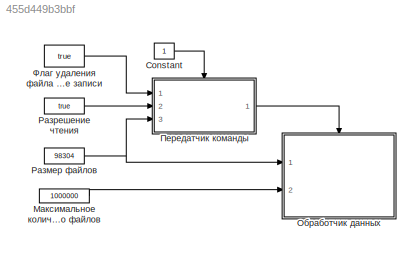
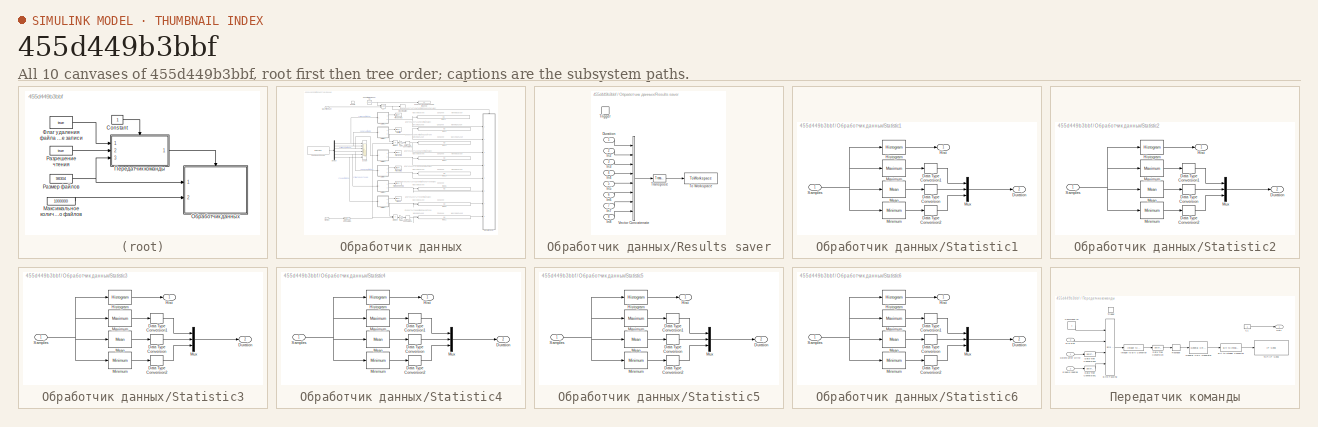
[diagram: thumbnail index - all 10 canvases of the model, root first then tree order]
MODEL slx_455d449b3bbf
KIND model
CONFIG AbsTol = auto
CONFIG EnableMultiTasking = off
CONFIG FixedStep = 0.001
CONFIG MaxStep = auto
CONFIG MinStep = auto
CONFIG RelTol = 1e-3
CONFIG SampleTimeConstraint = Unconstrained
CONFIG SolverName = FixedStepAuto
CONFIG StartTime = 0.0
CONFIG StopTime = inf
BLOCK [Constant] Constant
BLOCK [Constant] Максимальное количество файлов
  OutDataTypeStr = uint32
  Value = 1000000
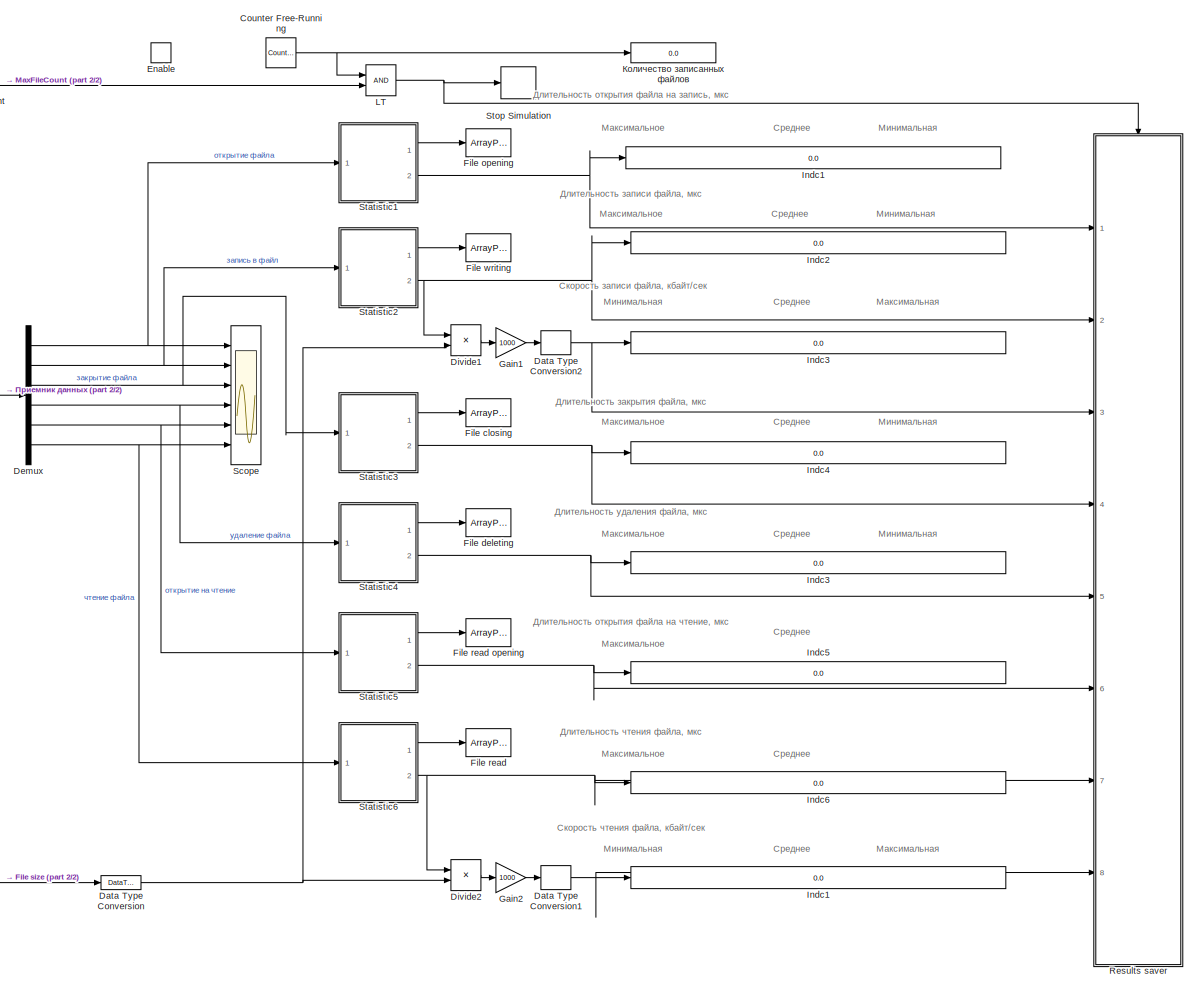
[diagram: Обработчик данных - part 1/2, most of the canvas]
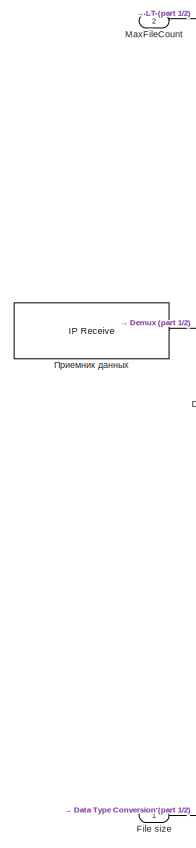
[diagram: Обработчик данных - part 2/2, left side, full height]
BLOCK [SubSystem] Обработчик данных
  Ports = [2, 0, 1]
  RequestExecContextInheritance = off
  TreatAsAtomicUnit = on
BLOCK [Display] Обработчик данных/ Indc1
  Decimation = 1
  Format = long
  Ports = [1]
BLOCK [Display] Обработчик данных/ Indc2
  Decimation = 1
  Format = long
  Ports = [1]
BLOCK [Display] Обработчик данных/ Indc3
  Decimation = 1
  Format = long
  Ports = [1]
BLOCK [Display] Обработчик данных/ Indc4
  Decimation = 1
  Format = long
  Ports = [1]
BLOCK [Display] Обработчик данных/ Indc5
  Decimation = 1
  Format = long
  Ports = [1]
BLOCK [Display] Обработчик данных/ Indc6
  Decimation = 1
  Format = long
  Ports = [1]
BLOCK [Reference] Обработчик данных/Counter Free-Running  REF=simulink/Sources/Counter
Free-Running
  Ports = [0, 1]
  SourceBlock = simulink/Sources/Counter\nFree-Running
  SourceProductBaseCode = SL
  SourceType = Counter Free-Running
BLOCK [DataTypeConversion] Обработчик данных/Data Type Conversion
  OutDataTypeStr = single
  RndMeth = Floor
  SaturateOnIntegerOverflow = off
BLOCK [DataTypeConversion] Обработчик данных/Data Type Conversion1
  OutDataTypeStr = int32
  RndMeth = Floor
  SaturateOnIntegerOverflow = off
BLOCK [DataTypeConversion] Обработчик данных/Data Type Conversion2
  OutDataTypeStr = int32
  RndMeth = Floor
  SaturateOnIntegerOverflow = off
BLOCK [Demux] Обработчик данных/Demux
  Outputs = 6
  Ports = [1, 6]
BLOCK [Product] Обработчик данных/Divide1
  Inputs = /*
  OutDataTypeStr = single
  Ports = [2, 1]
BLOCK [Product] Обработчик данных/Divide2
  Inputs = /*
  OutDataTypeStr = single
  Ports = [2, 1]
BLOCK [EnablePort] Обработчик данных/Enable
  Ports = []
BLOCK [ArrayPlot] Обработчик данных/File closing
  AxesScaling = Manual
  GraphicalSettings = {"Style":{"BackgroundColor":[0.1568627450980392,0.1568627450980392,0.1568627450980392],"AxesColor":[0,0,0],"LabelsColor":[0.6862745098039216,0.6862745098039216,0.6862745098039216],"LineStyle":["-"],"LineColor":[[1,1,0.06666666666666667]],"LineWidth":[1.5],"Marker":["none"],"FontSize":"small"},"Cursors":{"Enabled":false,"XLocation":[29,74.25],"SnapToData":false,"LockSpacing":false,"ShowText":false}...<+328ch>  <repeated x6 — deduplicated; at blocks: File closing, File deleting, File opening, File read, File read opening, File writing>
  PlotType = Stairs
  Ports = [1]
  SampleIncrement = 0.5
  ScopeFrameLocation = window
  ShowLegend = on
  Visible = on
  WasSavedAsWebScope = on
  WindowPosition = [1308.000000,91.000000,562.000000,274.000000,]
  YLimits = [-24.5,200]
  YScale = Log
BLOCK [ArrayPlot] Обработчик данных/File deleting
  AxesScaling = Manual
  PlotType = Stairs
  Ports = [1]
  SampleIncrement = 0.5
  ScopeFrameLocation = window
  ShowLegend = on
  Visible = on
  WasSavedAsWebScope = on
  WindowPosition = [1308.000000,91.000000,562.000000,274.000000,]
  YLimits = [-24.5,200]
  YScale = Log
BLOCK [ArrayPlot] Обработчик данных/File opening
  AxesScaling = Manual
  PlotType = Stairs
  Ports = [1]
  SampleIncrement = 0.5
  ScopeFrameLocation = window
  ShowLegend = on
  Visible = on
  WasSavedAsWebScope = on
  WindowPosition = [1311.000000,673.000000,562.000000,326.000000,]
  YLimits = [-24.5,200]
  YScale = Log
BLOCK [ArrayPlot] Обработчик данных/File read
  AxesScaling = Manual
  PlotType = Stairs
  Ports = [1]
  SampleIncrement = 0.5
  ScopeFrameLocation = window
  ShowLegend = on
  Visible = on
  WasSavedAsWebScope = on
  WindowPosition = [1308.000000,91.000000,562.000000,274.000000,]
  YLimits = [-24.5,200]
  YScale = Log
BLOCK [ArrayPlot] Обработчик данных/File read opening
  AxesScaling = Manual
  PlotType = Stairs
  Ports = [1]
  SampleIncrement = 0.5
  ScopeFrameLocation = window
  ShowLegend = on
  Visible = on
  WasSavedAsWebScope = on
  WindowPosition = [1308.000000,91.000000,562.000000,274.000000,]
  YLimits = [-24.5,200]
  YScale = Log
BLOCK [Inport] Обработчик данных/File size
BLOCK [ArrayPlot] Обработчик данных/File writing
  AxesScaling = Manual
  PlotType = Stairs
  Ports = [1]
  SampleIncrement = 300
  ScopeFrameLocation = window
  ShowLegend = on
  Visible = on
  WasSavedAsWebScope = on
  WindowPosition = [1310.000000,375.000000,562.000000,288.000000,]
  YLimits = [-24.5,200]
  YScale = Log
BLOCK [Gain] Обработчик данных/Gain1
  Gain = 1000
BLOCK [Gain] Обработчик данных/Gain2
  Gain = 1000
BLOCK [Display] Обработчик данных/Indc1
  Decimation = 1
  Format = long
  Ports = [1]
BLOCK [Display] Обработчик данных/Indc3
  Decimation = 1
  Format = long
  Ports = [1]
BLOCK [RelationalOperator] Обработчик данных/LT
  InputSameDT = off
  OutDataTypeStr = boolean
  Ports = [2, 1]
  RndMeth = Simplest
BLOCK [Inport] Обработчик данных/MaxFileCount
  Port = 2
BLOCK [SubSystem] Обработчик данных/Results saver
  Ports = [8, 0, 0, 1]
  RequestExecContextInheritance = off
  TreatAsAtomicUnit = on
BLOCK [Inport] Обработчик данных/Results saver/Duration
BLOCK [Inport] Обработчик данных/Results saver/In2
  Port = 2
BLOCK [Inport] Обработчик данных/Results saver/In3
  Port = 3
BLOCK [Inport] Обработчик данных/Results saver/In4
  Port = 4
BLOCK [Inport] Обработчик данных/Results saver/In5
  Port = 5
BLOCK [Inport] Обработчик данных/Results saver/In6
  Port = 6
BLOCK [Inport] Обработчик данных/Results saver/In7
  Port = 7
BLOCK [Inport] Обработчик данных/Results saver/In8
  Port = 8
BLOCK [ToWorkspace] Обработчик данных/Results saver/To Workspace
  FixptAsFi = on
  MaxDataPoints = inf
  Ports = [1]
  SampleTime = -1
  VariableName = Test_results
BLOCK [Reference] Обработчик данных/Results saver/Transpose  REF=matrix_library/Transpose
  Ports = [1, 1]
  SourceBlock = matrix_library/Transpose
  SourceProductBaseCode = SL
  SourceType = Transpose
BLOCK [TriggerPort] Обработчик данных/Results saver/Trigger
  InitialTriggerSignalState = zero
  Ports = []
  StatesWhenEnabling = held
  VariantControl = (inherit)
BLOCK [Concatenate] Обработчик данных/Results saver/Vector Concatenate
  ConcatenateDimension = 2
  Mode = Multidimensional array
  NumInputs = 8
  Ports = [8, 1]
BLOCK [Scope] Обработчик данных/Scope
  Floating = off
  NumInputPorts = 6
  Ports = [6]
  ScopeSpecificationString = Simulink.scopes.TimeScopeBlockCfg('CurrentConfiguration', extmgr.ConfigurationSet(extmgr.Configuration('Core','General UI',true),extmgr.Configuration('Core','Source UI',true),extmgr.Configuration('Sources','WiredSimulink',true,'DataLoggingVariableName','ScopeData1'),extmgr.Configuration('Visuals','Time Domain',true,'SerializedDisplays',{struct('MinYLimReal','79.00000','MaxYLimReal','119.00000','YL...<+5204ch>
BLOCK [SubSystem] Обработчик данных/Statistic1
  Ports = [1, 2]
  RequestExecContextInheritance = off
BLOCK [DataTypeConversion] Обработчик данных/Statistic1/Data Type Conversion
  OutDataTypeStr = int32
  RndMeth = Floor
  SaturateOnIntegerOverflow = off
BLOCK [DataTypeConversion] Обработчик данных/Statistic1/Data Type Conversion1
  OutDataTypeStr = int32
  RndMeth = Floor
  SaturateOnIntegerOverflow = off
BLOCK [DataTypeConversion] Обработчик данных/Statistic1/Data Type Conversion2
  OutDataTypeStr = int32
  RndMeth = Floor
  SaturateOnIntegerOverflow = off
BLOCK [Outport] Обработчик данных/Statistic1/Duration
  Port = 2
BLOCK [Outport] Обработчик данных/Statistic1/Hist
BLOCK [Reference] Обработчик данных/Statistic1/Histogram  REF=dspstat3/Histogram
  Ports = [1, 1]
  SourceBlock = dspstat3/Histogram
  SourceProductBaseCode = DS
  SourceType = Histogram
  UserDataPersistent = on
BLOCK [Reference] Обработчик данных/Statistic1/Maximum  REF=dspstat3/Maximum
  Ports = [1, 1]
  SourceBlock = dspstat3/Maximum
  SourceProductBaseCode = DS
  SourceType = Maximum
  UserDataPersistent = on
BLOCK [Reference] Обработчик данных/Statistic1/Mean  REF=dspstat3/Mean
  Ports = [1, 1]
  SourceBlock = dspstat3/Mean
  SourceProductBaseCode = DS
  SourceType = Mean
  UserDataPersistent = on
BLOCK [Reference] Обработчик данных/Statistic1/Minimum  REF=dspstat3/Minimum
  Ports = [1, 1]
  SourceBlock = dspstat3/Minimum
  SourceProductBaseCode = DS
  SourceType = Minimum
  UserDataPersistent = on
BLOCK [Mux] Обработчик данных/Statistic1/Mux
  DisplayOption = bar
  Inputs = 3
  Ports = [3, 1]
BLOCK [Inport] Обработчик данных/Statistic1/Samples
BLOCK [SubSystem] Обработчик данных/Statistic2
  Ports = [1, 2]
  RequestExecContextInheritance = off
BLOCK [DataTypeConversion] Обработчик данных/Statistic2/Data Type Conversion
  OutDataTypeStr = int32
  RndMeth = Floor
  SaturateOnIntegerOverflow = off
BLOCK [DataTypeConversion] Обработчик данных/Statistic2/Data Type Conversion1
  OutDataTypeStr = int32
  RndMeth = Floor
  SaturateOnIntegerOverflow = off
BLOCK [DataTypeConversion] Обработчик данных/Statistic2/Data Type Conversion2
  OutDataTypeStr = int32
  RndMeth = Floor
  SaturateOnIntegerOverflow = off
BLOCK [Outport] Обработчик данных/Statistic2/Duration
  Port = 2
BLOCK [Outport] Обработчик данных/Statistic2/Hist
BLOCK [Reference] Обработчик данных/Statistic2/Histogram  REF=dspstat3/Histogram
  Ports = [1, 1]
  SourceBlock = dspstat3/Histogram
  SourceProductBaseCode = DS
  SourceType = Histogram
  UserDataPersistent = on
BLOCK [Reference] Обработчик данных/Statistic2/Maximum  REF=dspstat3/Maximum
  Ports = [1, 1]
  SourceBlock = dspstat3/Maximum
  SourceProductBaseCode = DS
  SourceType = Maximum
  UserDataPersistent = on
BLOCK [Reference] Обработчик данных/Statistic2/Mean  REF=dspstat3/Mean
  Ports = [1, 1]
  SourceBlock = dspstat3/Mean
  SourceProductBaseCode = DS
  SourceType = Mean
  UserDataPersistent = on
BLOCK [Reference] Обработчик данных/Statistic2/Minimum  REF=dspstat3/Minimum
  Ports = [1, 1]
  SourceBlock = dspstat3/Minimum
  SourceProductBaseCode = DS
  SourceType = Minimum
  UserDataPersistent = on
BLOCK [Mux] Обработчик данных/Statistic2/Mux
  DisplayOption = bar
  Inputs = 3
  Ports = [3, 1]
BLOCK [Inport] Обработчик данных/Statistic2/Samples
BLOCK [SubSystem] Обработчик данных/Statistic3
  Ports = [1, 2]
  RequestExecContextInheritance = off
BLOCK [DataTypeConversion] Обработчик данных/Statistic3/Data Type Conversion
  OutDataTypeStr = int32
  RndMeth = Floor
  SaturateOnIntegerOverflow = off
BLOCK [DataTypeConversion] Обработчик данных/Statistic3/Data Type Conversion1
  OutDataTypeStr = int32
  RndMeth = Floor
  SaturateOnIntegerOverflow = off
BLOCK [DataTypeConversion] Обработчик данных/Statistic3/Data Type Conversion2
  OutDataTypeStr = int32
  RndMeth = Floor
  SaturateOnIntegerOverflow = off
BLOCK [Outport] Обработчик данных/Statistic3/Duration
  Port = 2
BLOCK [Outport] Обработчик данных/Statistic3/Hist
BLOCK [Reference] Обработчик данных/Statistic3/Histogram  REF=dspstat3/Histogram
  Ports = [1, 1]
  SourceBlock = dspstat3/Histogram
  SourceProductBaseCode = DS
  SourceType = Histogram
  UserDataPersistent = on
BLOCK [Reference] Обработчик данных/Statistic3/Maximum  REF=dspstat3/Maximum
  Ports = [1, 1]
  SourceBlock = dspstat3/Maximum
  SourceProductBaseCode = DS
  SourceType = Maximum
  UserDataPersistent = on
BLOCK [Reference] Обработчик данных/Statistic3/Mean  REF=dspstat3/Mean
  Ports = [1, 1]
  SourceBlock = dspstat3/Mean
  SourceProductBaseCode = DS
  SourceType = Mean
  UserDataPersistent = on
BLOCK [Reference] Обработчик данных/Statistic3/Minimum  REF=dspstat3/Minimum
  Ports = [1, 1]
  SourceBlock = dspstat3/Minimum
  SourceProductBaseCode = DS
  SourceType = Minimum
  UserDataPersistent = on
BLOCK [Mux] Обработчик данных/Statistic3/Mux
  DisplayOption = bar
  Inputs = 3
  Ports = [3, 1]
BLOCK [Inport] Обработчик данных/Statistic3/Samples
BLOCK [SubSystem] Обработчик данных/Statistic4
  Ports = [1, 2]
  RequestExecContextInheritance = off
BLOCK [DataTypeConversion] Обработчик данных/Statistic4/Data Type Conversion
  OutDataTypeStr = int32
  RndMeth = Floor
  SaturateOnIntegerOverflow = off
BLOCK [DataTypeConversion] Обработчик данных/Statistic4/Data Type Conversion1
  OutDataTypeStr = int32
  RndMeth = Floor
  SaturateOnIntegerOverflow = off
BLOCK [DataTypeConversion] Обработчик данных/Statistic4/Data Type Conversion2
  OutDataTypeStr = int32
  RndMeth = Floor
  SaturateOnIntegerOverflow = off
BLOCK [Outport] Обработчик данных/Statistic4/Duration
  Port = 2
BLOCK [Outport] Обработчик данных/Statistic4/Hist
BLOCK [Reference] Обработчик данных/Statistic4/Histogram  REF=dspstat3/Histogram
  Ports = [1, 1]
  SourceBlock = dspstat3/Histogram
  SourceProductBaseCode = DS
  SourceType = Histogram
  UserDataPersistent = on
BLOCK [Reference] Обработчик данных/Statistic4/Maximum  REF=dspstat3/Maximum
  Ports = [1, 1]
  SourceBlock = dspstat3/Maximum
  SourceProductBaseCode = DS
  SourceType = Maximum
  UserDataPersistent = on
BLOCK [Reference] Обработчик данных/Statistic4/Mean  REF=dspstat3/Mean
  Ports = [1, 1]
  SourceBlock = dspstat3/Mean
  SourceProductBaseCode = DS
  SourceType = Mean
  UserDataPersistent = on
BLOCK [Reference] Обработчик данных/Statistic4/Minimum  REF=dspstat3/Minimum
  Ports = [1, 1]
  SourceBlock = dspstat3/Minimum
  SourceProductBaseCode = DS
  SourceType = Minimum
  UserDataPersistent = on
BLOCK [Mux] Обработчик данных/Statistic4/Mux
  DisplayOption = bar
  Inputs = 3
  Ports = [3, 1]
BLOCK [Inport] Обработчик данных/Statistic4/Samples
BLOCK [SubSystem] Обработчик данных/Statistic5
  Ports = [1, 2]
  RequestExecContextInheritance = off
BLOCK [DataTypeConversion] Обработчик данных/Statistic5/Data Type Conversion
  OutDataTypeStr = int32
  RndMeth = Floor
  SaturateOnIntegerOverflow = off
BLOCK [DataTypeConversion] Обработчик данных/Statistic5/Data Type Conversion1
  OutDataTypeStr = int32
  RndMeth = Floor
  SaturateOnIntegerOverflow = off
BLOCK [DataTypeConversion] Обработчик данных/Statistic5/Data Type Conversion2
  OutDataTypeStr = int32
  RndMeth = Floor
  SaturateOnIntegerOverflow = off
BLOCK [Outport] Обработчик данных/Statistic5/Duration
  Port = 2
BLOCK [Outport] Обработчик данных/Statistic5/Hist
BLOCK [Reference] Обработчик данных/Statistic5/Histogram  REF=dspstat3/Histogram
  Ports = [1, 1]
  SourceBlock = dspstat3/Histogram
  SourceProductBaseCode = DS
  SourceType = Histogram
  UserDataPersistent = on
BLOCK [Reference] Обработчик данных/Statistic5/Maximum  REF=dspstat3/Maximum
  Ports = [1, 1]
  SourceBlock = dspstat3/Maximum
  SourceProductBaseCode = DS
  SourceType = Maximum
  UserDataPersistent = on
BLOCK [Reference] Обработчик данных/Statistic5/Mean  REF=dspstat3/Mean
  Ports = [1, 1]
  SourceBlock = dspstat3/Mean
  SourceProductBaseCode = DS
  SourceType = Mean
  UserDataPersistent = on
BLOCK [Reference] Обработчик данных/Statistic5/Minimum  REF=dspstat3/Minimum
  Ports = [1, 1]
  SourceBlock = dspstat3/Minimum
  SourceProductBaseCode = DS
  SourceType = Minimum
  UserDataPersistent = on
BLOCK [Mux] Обработчик данных/Statistic5/Mux
  DisplayOption = bar
  Inputs = 3
  Ports = [3, 1]
BLOCK [Inport] Обработчик данных/Statistic5/Samples
BLOCK [SubSystem] Обработчик данных/Statistic6
  Ports = [1, 2]
  RequestExecContextInheritance = off
BLOCK [DataTypeConversion] Обработчик данных/Statistic6/Data Type Conversion
  OutDataTypeStr = int32
  RndMeth = Floor
  SaturateOnIntegerOverflow = off
BLOCK [DataTypeConversion] Обработчик данных/Statistic6/Data Type Conversion1
  OutDataTypeStr = int32
  RndMeth = Floor
  SaturateOnIntegerOverflow = off
BLOCK [DataTypeConversion] Обработчик данных/Statistic6/Data Type Conversion2
  OutDataTypeStr = int32
  RndMeth = Floor
  SaturateOnIntegerOverflow = off
BLOCK [Outport] Обработчик данных/Statistic6/Duration
  Port = 2
BLOCK [Outport] Обработчик данных/Statistic6/Hist
BLOCK [Reference] Обработчик данных/Statistic6/Histogram  REF=dspstat3/Histogram
  Ports = [1, 1]
  SourceBlock = dspstat3/Histogram
  SourceProductBaseCode = DS
  SourceType = Histogram
  UserDataPersistent = on
BLOCK [Reference] Обработчик данных/Statistic6/Maximum  REF=dspstat3/Maximum
  Ports = [1, 1]
  SourceBlock = dspstat3/Maximum
  SourceProductBaseCode = DS
  SourceType = Maximum
  UserDataPersistent = on
BLOCK [Reference] Обработчик данных/Statistic6/Mean  REF=dspstat3/Mean
  Ports = [1, 1]
  SourceBlock = dspstat3/Mean
  SourceProductBaseCode = DS
  SourceType = Mean
  UserDataPersistent = on
BLOCK [Reference] Обработчик данных/Statistic6/Minimum  REF=dspstat3/Minimum
  Ports = [1, 1]
  SourceBlock = dspstat3/Minimum
  SourceProductBaseCode = DS
  SourceType = Minimum
  UserDataPersistent = on
BLOCK [Mux] Обработчик данных/Statistic6/Mux
  DisplayOption = bar
  Inputs = 3
  Ports = [3, 1]
BLOCK [Inport] Обработчик данных/Statistic6/Samples
BLOCK [Stop] Обработчик данных/Stop Simulation
BLOCK [Display] Обработчик данных/Количество записанных файлов
  Decimation = 1
  Format = long
  Ports = [1]
BLOCK [Reference] Обработчик данных/Приемник данных  REF=instrumentlib/TCP//IP Receive
  Ports = [0, 1]
  SourceBlock = instrumentlib/TCP//IP Receive
  SourceProductBaseCode = IC
  SourceType = instrument.system.TCPIPReceive
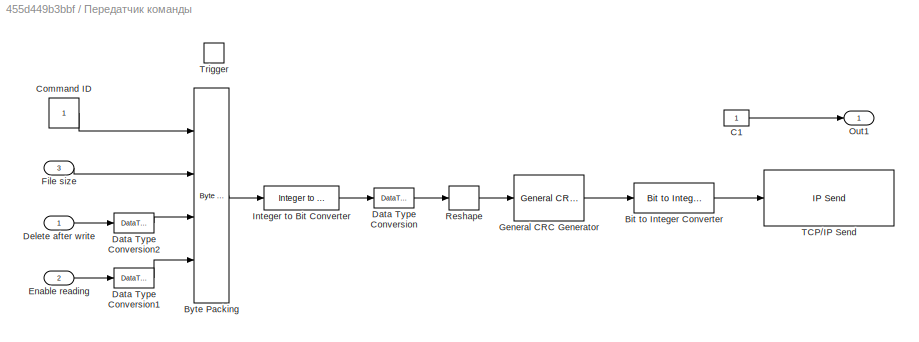
BLOCK [SubSystem] Передатчик команды
  Ports = [3, 1, 0, 1]
  RequestExecContextInheritance = off
  TreatAsAtomicUnit = on
BLOCK [Constant] Передатчик команды/ C1
  OutDataTypeStr = uint32
BLOCK [Reference] Передатчик команды/Bit to Integer Converter  REF=simulink/Logic and Bit
Operations/Bit to Integer
Converter
  Ports = [1, 1]
  SourceBlock = simulink/Logic and Bit\nOperations/Bit to Integer\nConverter
  SourceProductBaseCode = SL
  SourceType = Bit to Integer Converter
BLOCK [Reference] Передатчик команды/Byte Packing  REF=slrealtimeutilitieslib/Byte Packing
  Ports = [4, 1]
  SourceBlock = slrealtimeutilitieslib/Byte Packing
  SourceProductBaseCode = XP
  SourceType = slrealtimebytepacking
BLOCK [Constant] Передатчик команды/Command ID
  OutDataTypeStr = uint32
BLOCK [DataTypeConversion] Передатчик команды/Data Type Conversion
  OutDataTypeStr = boolean
  RndMeth = Floor
  SaturateOnIntegerOverflow = off
BLOCK [DataTypeConversion] Передатчик команды/Data Type Conversion1
  OutDataTypeStr = uint8
  RndMeth = Floor
  SaturateOnIntegerOverflow = off
BLOCK [DataTypeConversion] Передатчик команды/Data Type Conversion2
  OutDataTypeStr = uint8
  RndMeth = Floor
  SaturateOnIntegerOverflow = off
BLOCK [Inport] Передатчик команды/Delete after write
BLOCK [Inport] Передатчик команды/Enable reading
  Port = 2
BLOCK [Inport] Передатчик команды/File size
  Port = 3
BLOCK [Reference] Передатчик команды/General CRC Generator  REF=commcrc2/General CRC
Generator
  Ports = [1, 1]
  SourceBlock = commcrc2/General CRC\nGenerator
  SourceProductBaseCode = CM
  SourceType = General CRC Generator
BLOCK [Reference] Передатчик команды/Integer to Bit Converter  REF=simulink/Logic and Bit
Operations/Integer to Bit
Converter
  Ports = [1, 1]
  SourceBlock = simulink/Logic and Bit\nOperations/Integer to Bit\nConverter
  SourceProductBaseCode = SL
  SourceType = Integer to Bit Converter
BLOCK [Outport] Передатчик команды/Out1
BLOCK [Reshape] Передатчик команды/Reshape
  OutputDimensionality = Customize
  OutputDimensions = [80,1]
  Ports = [1, 1]
BLOCK [Reference] Передатчик команды/TCP//IP Send  REF=instrumentlib/TCP//IP Send
  Ports = [1]
  SourceBlock = instrumentlib/TCP//IP Send
  SourceProductBaseCode = IC
  SourceType = instrument.system.TCPIPSend
BLOCK [TriggerPort] Передатчик команды/Trigger
  InitialTriggerSignalState = zero
  Ports = []
  StatesWhenEnabling = held
  VariantControl = (inherit)
BLOCK [Constant] Размер файлов
  OutDataTypeStr = uint32
  Value = 98304
BLOCK [Constant] Разрешение чтения
  Value = true
BLOCK [Constant] Флаг удаления файла после записи
  Value = true
ANNOTATION Обработчик данных: Длительность закрытия файла, мкс
ANNOTATION Обработчик данных: Длительность записи файла, мкс
ANNOTATION Обработчик данных: Длительность открытия файла на чтение, мкс
ANNOTATION Обработчик данных: Длительность удаления файла, мкс
ANNOTATION Обработчик данных: Длительность чтения файла, мкс
ANNOTATION Обработчик данных: Скорость записи файла, кбайт/сек
ANNOTATION Обработчик данных: Скорость чтения файла, кбайт/сек
ANNOTATION Обработчик данных: Длительность открытия файла на запись, мкс
ANNOTATION Обработчик данных: Максимальная
ANNOTATION Обработчик данных: Максимальное
ANNOTATION Обработчик данных: Минимальная
ANNOTATION Обработчик данных: Среднее
LINE Constant:1 -> Передатчик команды:trigger
LINE Максимальное количество файлов:1 -> Обработчик данных:2
NET Обработчик данных/Counter Free-Running:1 -> Обработчик данных/LT:1, Обработчик данных/Количество записанных файлов:1
NET Обработчик данных/Data Type Conversion1:1 -> Обработчик данных/Indc1:1, Обработчик данных/Results saver:8
NET Обработчик данных/Data Type Conversion2:1 -> Обработчик данных/Indc3:1, Обработчик данных/Results saver:3
NET Обработчик данных/Data Type Conversion:1 -> Обработчик данных/Divide1:2, Обработчик данных/Divide2:2
NET Обработчик данных/Demux:1 -> Обработчик данных/Scope:1, Обработчик данных/Statistic1:1
NET Обработчик данных/Demux:2 -> Обработчик данных/Scope:2, Обработчик данных/Statistic2:1
NET Обработчик данных/Demux:3 -> Обработчик данных/Scope:3, Обработчик данных/Statistic3:1
NET Обработчик данных/Demux:4 -> Обработчик данных/Scope:4, Обработчик данных/Statistic4:1
NET Обработчик данных/Demux:5 -> Обработчик данных/Scope:5, Обработчик данных/Statistic5:1
NET Обработчик данных/Demux:6 -> Обработчик данных/Scope:6, Обработчик данных/Statistic6:1
LINE Обработчик данных/Divide1:1 -> Обработчик данных/Gain1:1
LINE Обработчик данных/Divide2:1 -> Обработчик данных/Gain2:1
LINE Обработчик данных/File size:1 -> Обработчик данных/Data Type Conversion:1
LINE Обработчик данных/Gain1:1 -> Обработчик данных/Data Type Conversion2:1
LINE Обработчик данных/Gain2:1 -> Обработчик данных/Data Type Conversion1:1
NET Обработчик данных/LT:1 -> Обработчик данных/Results saver:trigger, Обработчик данных/Stop Simulation:1
LINE Обработчик данных/MaxFileCount:1 -> Обработчик данных/LT:2
LINE Обработчик данных/Results saver/Duration:1 -> Обработчик данных/Results saver/Vector Concatenate:1
LINE Обработчик данных/Results saver/In2:1 -> Обработчик данных/Results saver/Vector Concatenate:2
LINE Обработчик данных/Results saver/In3:1 -> Обработчик данных/Results saver/Vector Concatenate:3
LINE Обработчик данных/Results saver/In4:1 -> Обработчик данных/Results saver/Vector Concatenate:4
LINE Обработчик данных/Results saver/In5:1 -> Обработчик данных/Results saver/Vector Concatenate:5
LINE Обработчик данных/Results saver/In6:1 -> Обработчик данных/Results saver/Vector Concatenate:6
LINE Обработчик данных/Results saver/In7:1 -> Обработчик данных/Results saver/Vector Concatenate:7
LINE Обработчик данных/Results saver/In8:1 -> Обработчик данных/Results saver/Vector Concatenate:8
LINE Обработчик данных/Results saver/Transpose:1 -> Обработчик данных/Results saver/To Workspace:1
LINE Обработчик данных/Results saver/Vector Concatenate:1 -> Обработчик данных/Results saver/Transpose:1
LINE Обработчик данных/Statistic1/Data Type Conversion1:1 -> Обработчик данных/Statistic1/Mux:1
LINE Обработчик данных/Statistic1/Data Type Conversion2:1 -> Обработчик данных/Statistic1/Mux:3
LINE Обработчик данных/Statistic1/Data Type Conversion:1 -> Обработчик данных/Statistic1/Mux:2
LINE Обработчик данных/Statistic1/Histogram:1 -> Обработчик данных/Statistic1/Hist:1
LINE Обработчик данных/Statistic1/Maximum:1 -> Обработчик данных/Statistic1/Data Type Conversion1:1
LINE Обработчик данных/Statistic1/Mean:1 -> Обработчик данных/Statistic1/Data Type Conversion:1
LINE Обработчик данных/Statistic1/Minimum:1 -> Обработчик данных/Statistic1/Data Type Conversion2:1
LINE Обработчик данных/Statistic1/Mux:1 -> Обработчик данных/Statistic1/Duration:1
NET Обработчик данных/Statistic1/Samples:1 -> Обработчик данных/Statistic1/Histogram:1, Обработчик данных/Statistic1/Maximum:1, Обработчик данных/Statistic1/Mean:1, Обработчик данных/Statistic1/Minimum:1
LINE Обработчик данных/Statistic1:1 -> Обработчик данных/File opening:1
NET Обработчик данных/Statistic1:2 -> Обработчик данных/ Indc1:1, Обработчик данных/Results saver:1
LINE Обработчик данных/Statistic2/Data Type Conversion1:1 -> Обработчик данных/Statistic2/Mux:1
LINE Обработчик данных/Statistic2/Data Type Conversion2:1 -> Обработчик данных/Statistic2/Mux:3
LINE Обработчик данных/Statistic2/Data Type Conversion:1 -> Обработчик данных/Statistic2/Mux:2
LINE Обработчик данных/Statistic2/Histogram:1 -> Обработчик данных/Statistic2/Hist:1
LINE Обработчик данных/Statistic2/Maximum:1 -> Обработчик данных/Statistic2/Data Type Conversion1:1
LINE Обработчик данных/Statistic2/Mean:1 -> Обработчик данных/Statistic2/Data Type Conversion:1
LINE Обработчик данных/Statistic2/Minimum:1 -> Обработчик данных/Statistic2/Data Type Conversion2:1
LINE Обработчик данных/Statistic2/Mux:1 -> Обработчик данных/Statistic2/Duration:1
NET Обработчик данных/Statistic2/Samples:1 -> Обработчик данных/Statistic2/Histogram:1, Обработчик данных/Statistic2/Maximum:1, Обработчик данных/Statistic2/Mean:1, Обработчик данных/Statistic2/Minimum:1
LINE Обработчик данных/Statistic2:1 -> Обработчик данных/File writing:1
NET Обработчик данных/Statistic2:2 -> Обработчик данных/ Indc2:1, Обработчик данных/Divide1:1, Обработчик данных/Results saver:2
LINE Обработчик данных/Statistic3/Data Type Conversion1:1 -> Обработчик данных/Statistic3/Mux:1
LINE Обработчик данных/Statistic3/Data Type Conversion2:1 -> Обработчик данных/Statistic3/Mux:3
LINE Обработчик данных/Statistic3/Data Type Conversion:1 -> Обработчик данных/Statistic3/Mux:2
LINE Обработчик данных/Statistic3/Histogram:1 -> Обработчик данных/Statistic3/Hist:1
LINE Обработчик данных/Statistic3/Maximum:1 -> Обработчик данных/Statistic3/Data Type Conversion1:1
LINE Обработчик данных/Statistic3/Mean:1 -> Обработчик данных/Statistic3/Data Type Conversion:1
LINE Обработчик данных/Statistic3/Minimum:1 -> Обработчик данных/Statistic3/Data Type Conversion2:1
LINE Обработчик данных/Statistic3/Mux:1 -> Обработчик данных/Statistic3/Duration:1
NET Обработчик данных/Statistic3/Samples:1 -> Обработчик данных/Statistic3/Histogram:1, Обработчик данных/Statistic3/Maximum:1, Обработчик данных/Statistic3/Mean:1, Обработчик данных/Statistic3/Minimum:1
LINE Обработчик данных/Statistic3:1 -> Обработчик данных/File closing:1
NET Обработчик данных/Statistic3:2 -> Обработчик данных/ Indc4:1, Обработчик данных/Results saver:4
LINE Обработчик данных/Statistic4/Data Type Conversion1:1 -> Обработчик данных/Statistic4/Mux:1
LINE Обработчик данных/Statistic4/Data Type Conversion2:1 -> Обработчик данных/Statistic4/Mux:3
LINE Обработчик данных/Statistic4/Data Type Conversion:1 -> Обработчик данных/Statistic4/Mux:2
LINE Обработчик данных/Statistic4/Histogram:1 -> Обработчик данных/Statistic4/Hist:1
LINE Обработчик данных/Statistic4/Maximum:1 -> Обработчик данных/Statistic4/Data Type Conversion1:1
LINE Обработчик данных/Statistic4/Mean:1 -> Обработчик данных/Statistic4/Data Type Conversion:1
LINE Обработчик данных/Statistic4/Minimum:1 -> Обработчик данных/Statistic4/Data Type Conversion2:1
LINE Обработчик данных/Statistic4/Mux:1 -> Обработчик данных/Statistic4/Duration:1
NET Обработчик данных/Statistic4/Samples:1 -> Обработчик данных/Statistic4/Histogram:1, Обработчик данных/Statistic4/Maximum:1, Обработчик данных/Statistic4/Mean:1, Обработчик данных/Statistic4/Minimum:1
LINE Обработчик данных/Statistic4:1 -> Обработчик данных/File deleting:1
NET Обработчик данных/Statistic4:2 -> Обработчик данных/ Indc3:1, Обработчик данных/Results saver:5
LINE Обработчик данных/Statistic5/Data Type Conversion1:1 -> Обработчик данных/Statistic5/Mux:1
LINE Обработчик данных/Statistic5/Data Type Conversion2:1 -> Обработчик данных/Statistic5/Mux:3
LINE Обработчик данных/Statistic5/Data Type Conversion:1 -> Обработчик данных/Statistic5/Mux:2
LINE Обработчик данных/Statistic5/Histogram:1 -> Обработчик данных/Statistic5/Hist:1
LINE Обработчик данных/Statistic5/Maximum:1 -> Обработчик данных/Statistic5/Data Type Conversion1:1
LINE Обработчик данных/Statistic5/Mean:1 -> Обработчик данных/Statistic5/Data Type Conversion:1
LINE Обработчик данных/Statistic5/Minimum:1 -> Обработчик данных/Statistic5/Data Type Conversion2:1
LINE Обработчик данных/Statistic5/Mux:1 -> Обработчик данных/Statistic5/Duration:1
NET Обработчик данных/Statistic5/Samples:1 -> Обработчик данных/Statistic5/Histogram:1, Обработчик данных/Statistic5/Maximum:1, Обработчик данных/Statistic5/Mean:1, Обработчик данных/Statistic5/Minimum:1
LINE Обработчик данных/Statistic5:1 -> Обработчик данных/File read opening:1
NET Обработчик данных/Statistic5:2 -> Обработчик данных/ Indc5:1, Обработчик данных/Results saver:6
LINE Обработчик данных/Statistic6/Data Type Conversion1:1 -> Обработчик данных/Statistic6/Mux:1
LINE Обработчик данных/Statistic6/Data Type Conversion2:1 -> Обработчик данных/Statistic6/Mux:3
LINE Обработчик данных/Statistic6/Data Type Conversion:1 -> Обработчик данных/Statistic6/Mux:2
LINE Обработчик данных/Statistic6/Histogram:1 -> Обработчик данных/Statistic6/Hist:1
LINE Обработчик данных/Statistic6/Maximum:1 -> Обработчик данных/Statistic6/Data Type Conversion1:1
LINE Обработчик данных/Statistic6/Mean:1 -> Обработчик данных/Statistic6/Data Type Conversion:1
LINE Обработчик данных/Statistic6/Minimum:1 -> Обработчик данных/Statistic6/Data Type Conversion2:1
LINE Обработчик данных/Statistic6/Mux:1 -> Обработчик данных/Statistic6/Duration:1
NET Обработчик данных/Statistic6/Samples:1 -> Обработчик данных/Statistic6/Histogram:1, Обработчик данных/Statistic6/Maximum:1, Обработчик данных/Statistic6/Mean:1, Обработчик данных/Statistic6/Minimum:1
LINE Обработчик данных/Statistic6:1 -> Обработчик данных/File read:1
NET Обработчик данных/Statistic6:2 -> Обработчик данных/ Indc6:1, Обработчик данных/Divide2:1, Обработчик данных/Results saver:7
LINE Обработчик данных/Приемник данных:1 -> Обработчик данных/Demux:1
LINE Передатчик команды/ C1:1 -> Передатчик команды/Out1:1
LINE Передатчик команды/Bit to Integer Converter:1 -> Передатчик команды/TCP//IP Send:1
LINE Передатчик команды/Byte Packing:1 -> Передатчик команды/Integer to Bit Converter:1
LINE Передатчик команды/Command ID:1 -> Передатчик команды/Byte Packing:1
LINE Передатчик команды/Data Type Conversion1:1 -> Передатчик команды/Byte Packing:4
LINE Передатчик команды/Data Type Conversion2:1 -> Передатчик команды/Byte Packing:3
LINE Передатчик команды/Data Type Conversion:1 -> Передатчик команды/Reshape:1
LINE Передатчик команды/Delete after write:1 -> Передатчик команды/Data Type Conversion2:1
LINE Передатчик команды/Enable reading:1 -> Передатчик команды/Data Type Conversion1:1
LINE Передатчик команды/File size:1 -> Передатчик команды/Byte Packing:2
LINE Передатчик команды/General CRC Generator:1 -> Передатчик команды/Bit to Integer Converter:1
LINE Передатчик команды/Integer to Bit Converter:1 -> Передатчик команды/Data Type Conversion:1
LINE Передатчик команды/Reshape:1 -> Передатчик команды/General CRC Generator:1
LINE Передатчик команды:1 -> Обработчик данных:enable
NET Размер файлов:1 -> Обработчик данных:1, Передатчик команды:3
LINE Разрешение чтения:1 -> Передатчик команды:2
LINE Флаг удаления файла после записи:1 -> Передатчик команды:1
note: NET lines group one-source signal fan-out (src -> all destinations, sorted); 1:1 wires keep LINE
